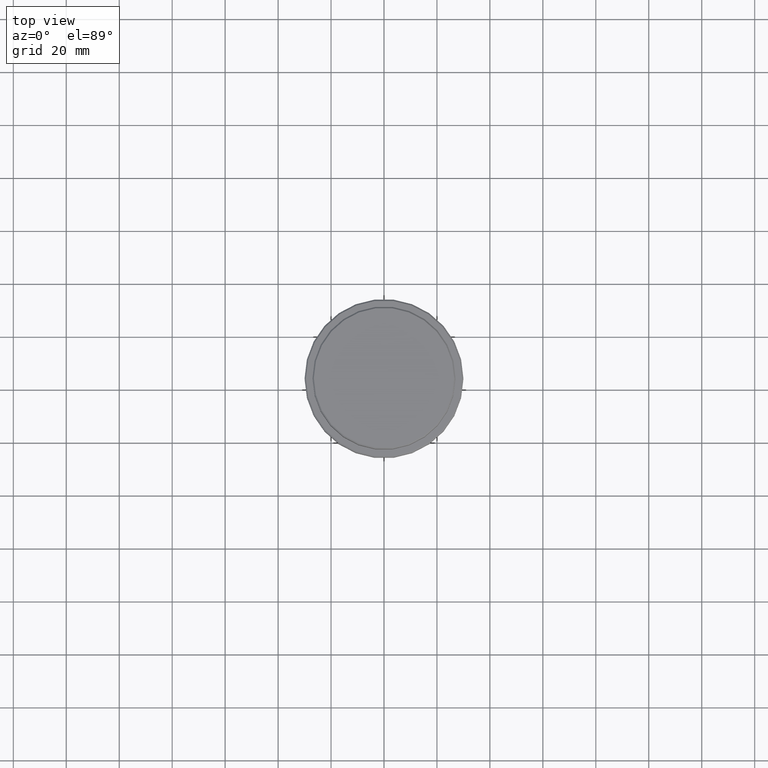
[diagram: clean part render]
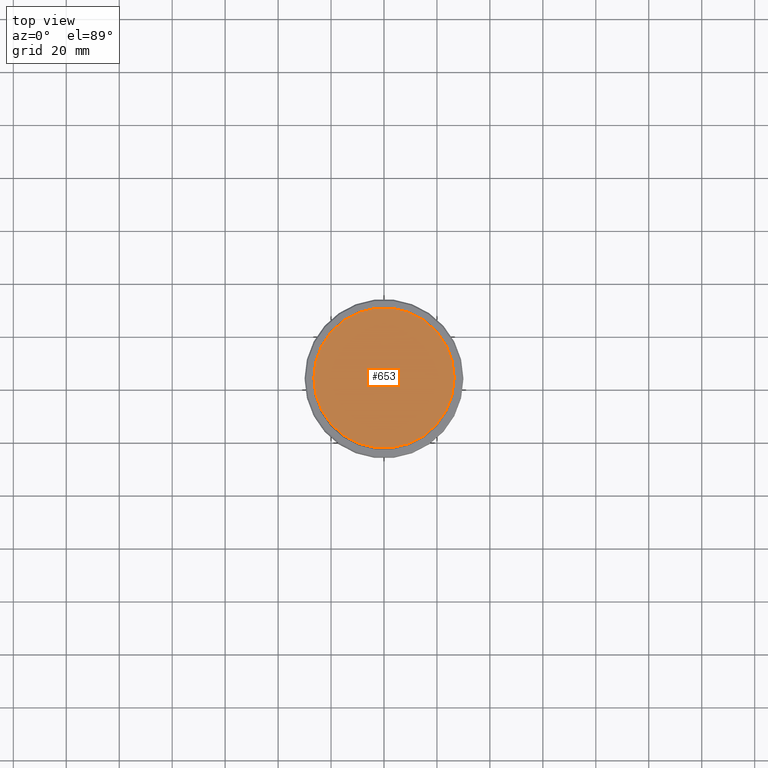
[diagram: same view with one face highlighted and labeled with its STEP entity id]
A machine part, top view. The second image highlights one B-rep face of the part: STEP entity #653.
In plain terms, the highlighted planar face has unit normal (0, -0, 1).
Its self-contained STEP definition (entity closure, byte-faithful):
#37 = CIRCLE ( 'NONE', #488, 26.49999999999999645 ) ;
#78 = CIRCLE ( 'NONE', #167, 26.49999999999999645 ) ;
#167 = AXIS2_PLACEMENT_3D ( 'NONE', #618, #496, #624 ) ;
#409 = EDGE_CURVE ( 'NONE', #520, #1312, #37, .T. ) ;
#427 = ORIENTED_EDGE ( 'NONE', *, *, #409, .T. ) ;
#446 = EDGE_LOOP ( 'NONE', ( #817, #427 ) ) ;
#488 = AXIS2_PLACEMENT_3D ( 'NONE', #800, #1355, #699 ) ;
#496 = DIRECTION ( 'NONE',  ( -0.000000000000000000, -0.000000000000000000, 1.000000000000000000 ) ) ;
#520 = VERTEX_POINT ( 'NONE', #1392 ) ;
#578 = EDGE_CURVE ( 'NONE', #1312, #520, #78, .T. ) ;
#618 = CARTESIAN_POINT ( 'NONE',  ( 0.000000000000000000, 0.000000000000000000, 0.000000000000000000 ) ) ;
#624 = DIRECTION ( 'NONE',  ( 1.000000000000000000, 0.000000000000000000, 0.000000000000000000 ) ) ;
#653 = ADVANCED_FACE ( 'NONE', ( #836 ), #1169, .T. ) ;
#699 = DIRECTION ( 'NONE',  ( 1.000000000000000000, 0.000000000000000000, 0.000000000000000000 ) ) ;
#738 = DIRECTION ( 'NONE',  ( 0.000000000000000000, -0.000000000000000000, 1.000000000000000000 ) ) ;
#800 = CARTESIAN_POINT ( 'NONE',  ( 0.000000000000000000, 0.000000000000000000, 0.000000000000000000 ) ) ;
#817 = ORIENTED_EDGE ( 'NONE', *, *, #578, .T. ) ;
#836 = FACE_OUTER_BOUND ( 'NONE', #446, .T. ) ;
#986 = AXIS2_PLACEMENT_3D ( 'NONE', #1042, #738, #1277 ) ;
#1042 = CARTESIAN_POINT ( 'NONE',  ( 0.000000000000000000, 0.000000000000000000, 0.000000000000000000 ) ) ;
#1169 = PLANE ( 'NONE',  #986 ) ;
#1277 = DIRECTION ( 'NONE',  ( 1.000000000000000000, 0.000000000000000000, 0.000000000000000000 ) ) ;
#1312 = VERTEX_POINT ( 'NONE', #1378 ) ;
#1355 = DIRECTION ( 'NONE',  ( -0.000000000000000000, -0.000000000000000000, 1.000000000000000000 ) ) ;
#1378 = CARTESIAN_POINT ( 'NONE',  ( -26.49999999999999645, 0.000000000000000000, 0.000000000000000000 ) ) ;
#1392 = CARTESIAN_POINT ( 'NONE',  ( 26.49999999999999645, 3.275930187719169552E-15, 0.000000000000000000 ) ) ;